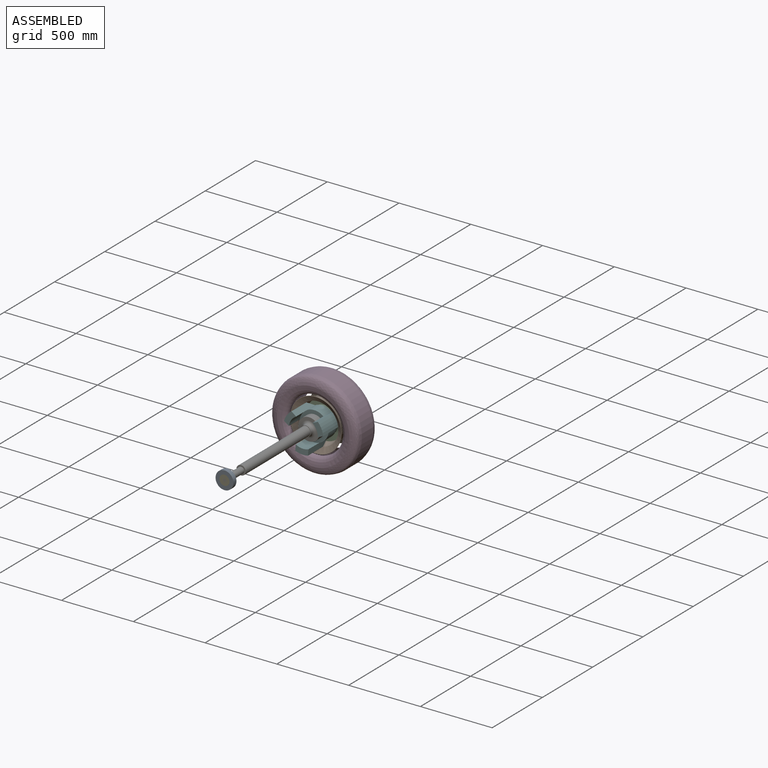
[diagram: assembled view]
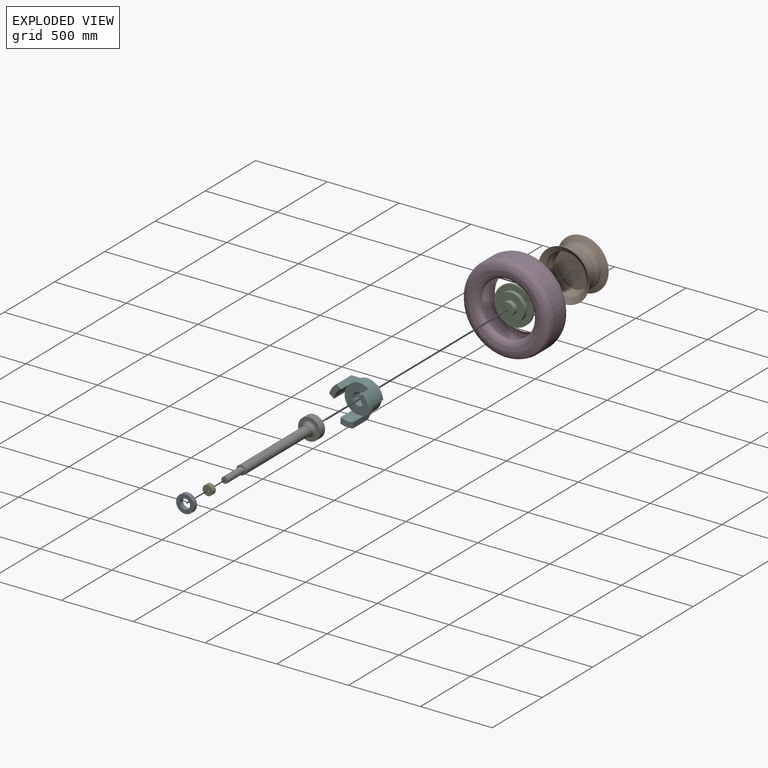
[diagram: exploded view]
GUIDED TOUR — MATED ASSEMBLY (Onshape document 6f42b4545923c4655d142c9b, AutoMate assembly 6f42b4545923c4655d142c9b_3f75b9e3b0eb9c8f5055ca79_a90d861f3bb45c76250df368_default)

This assembly has 7 components, labeled P0..P6 below (a component is one placed occurrence of a part; the same part can appear more than once), held together by 6 mates. A mate is a constraint between two components; its type names the relative motion it leaves free:
  BALL — leaves all rotation about the listed point free (a ball joint),
  CYLINDRICAL — leaves both rotation about and translation along the listed axis free,
  PLANAR — leaves sliding in the plane through the listed point (normal = the listed direction) and rotation about that normal free,
  REVOLUTE — leaves rotation about the listed axis free (a hinge).
Axis/direction vectors are unit vectors and 'through' points are millimeter coordinates, both in the assembly's world frame.

MATES
  1. PLANAR "Planar 1": P1 <-> P2, direction (0.000, -1.000, 0.000) through (-264.76, 300.87, -174.19) mm
  2. CYLINDRICAL "Cylindrical 2": P4 <-> P6, axis (0.000, -1.000, 0.000) through (-264.76, -715.00, -174.19) mm
  3. CYLINDRICAL "Cylindrical 3": P0 <-> P6, axis (0.000, 1.000, 0.000) through (-264.76, -715.00, -174.19) mm
  4. REVOLUTE "Revolute 1": P5 <-> P6, axis (0.000, -1.000, 0.000) through (-264.76, 177.04, -174.19) mm
  5. BALL "Ball 1": P3 <-> P1, direction (0.000, -1.000, 0.000) through (-264.76, 195.67, -174.19) mm
  6. CYLINDRICAL "Cylindrical 1": P2 <-> P5, axis (0.000, -1.000, 0.000) through (-264.76, 256.42, -174.19) mm

ASSEMBLY ORDER
  1. P6 — the base component [order heuristic]
  2. P5 — core [order heuristic]
  3. P3 [order verified]
  4. P2 — core [order heuristic]
  5. P1 — core [order heuristic]
  6. P4 — core [order heuristic]
  7. P0 — core [order heuristic]
Order-tag legend:
  [order verified] — this step's position reverses a verified removal order: the component was checked to insert without passing through the ones already placed.
  [order heuristic] — the first 6 components form the assembly's core: parts whose collision-free extraction could not be verified, listed in mate-graph order.

Of the 7 components, 6 carry the full construction recipe — the FeatureScript program that regenerates the part's solid from scratch; the rest are supplied as boundary geometry only.
Each toured component is shown spotlighted twice — in the assembled view, then in the exploded view, where a leader line traces a displaced component back to its assembled socket (saturated green if recipe-attached, orange if geometry-only; every other component desaturated gray) — followed by its recipe or geometry summary and the mates that hold it.
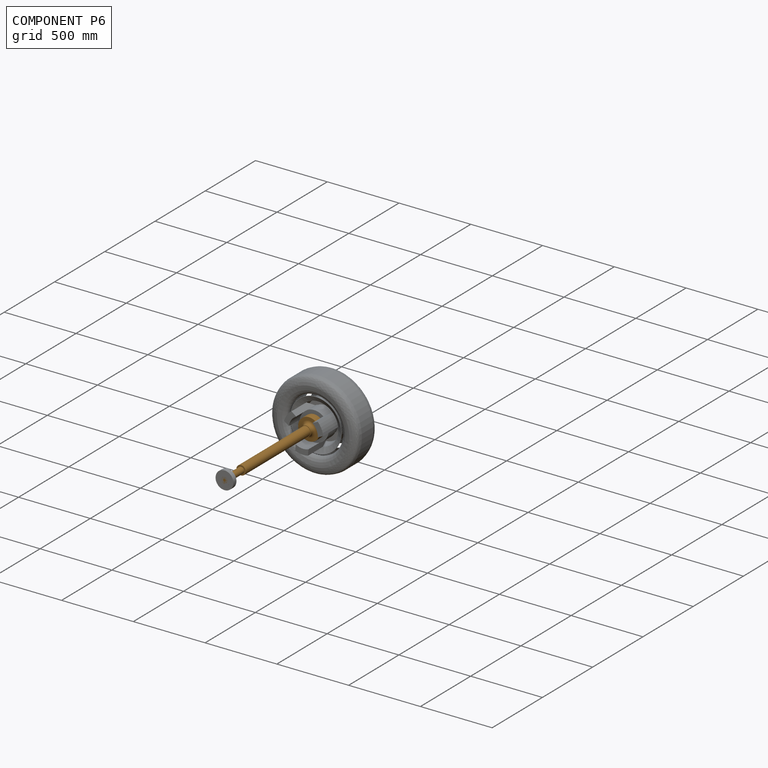
[diagram: component P6 — assembled]
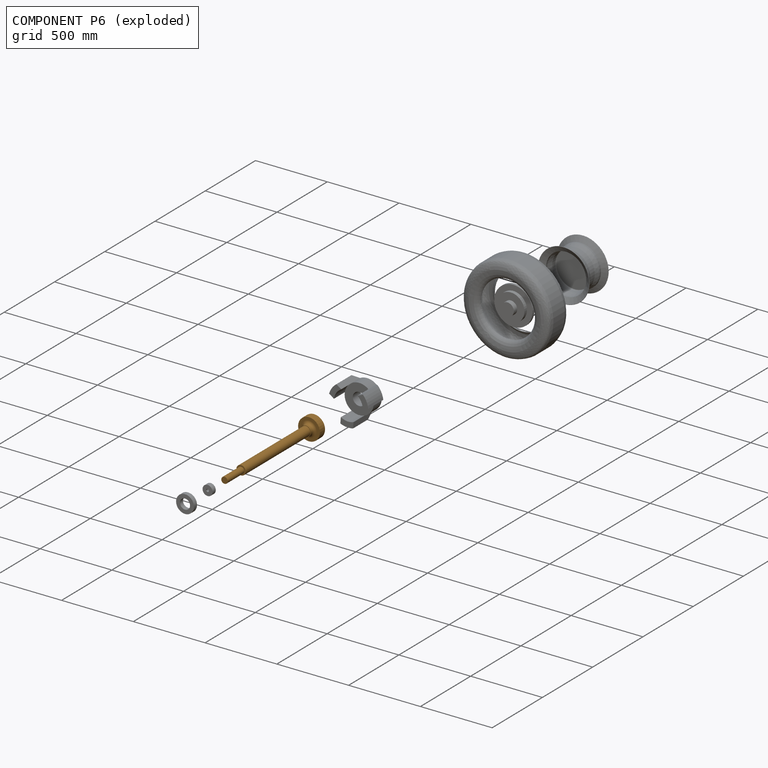
[diagram: component P6 — exploded]
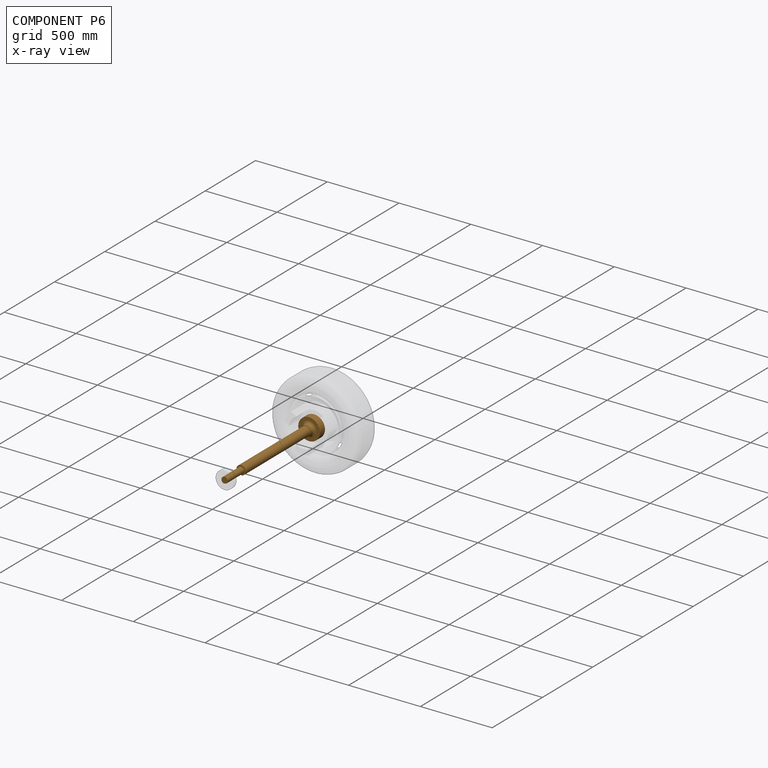
[diagram: component P6 — x-ray view]
COMPONENT P6 — geometry summary (no construction recipe available for this part):
  bounding box: 892.0 x 152.4 x 152.4 mm
  B-rep topology: 1 solid, 10 faces, 32 edges
  volume: 3469334 mm^3 (17% of its bounding box)
  symmetry: revolution-symmetric about the y axis through its bounding-box center; mirror-symmetric across its x mid-plane, z mid-plane
Held by: CYLINDRICAL mate "Cylindrical 2" to P4; CYLINDRICAL mate "Cylindrical 3" to P0; REVOLUTE mate "Revolute 1" to P5.
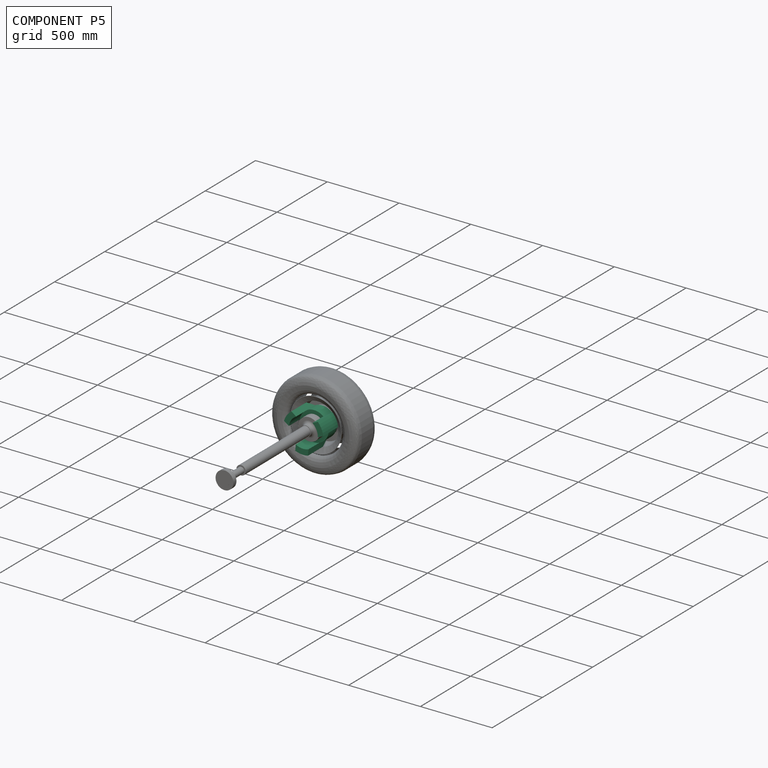
[diagram: component P5 — assembled]
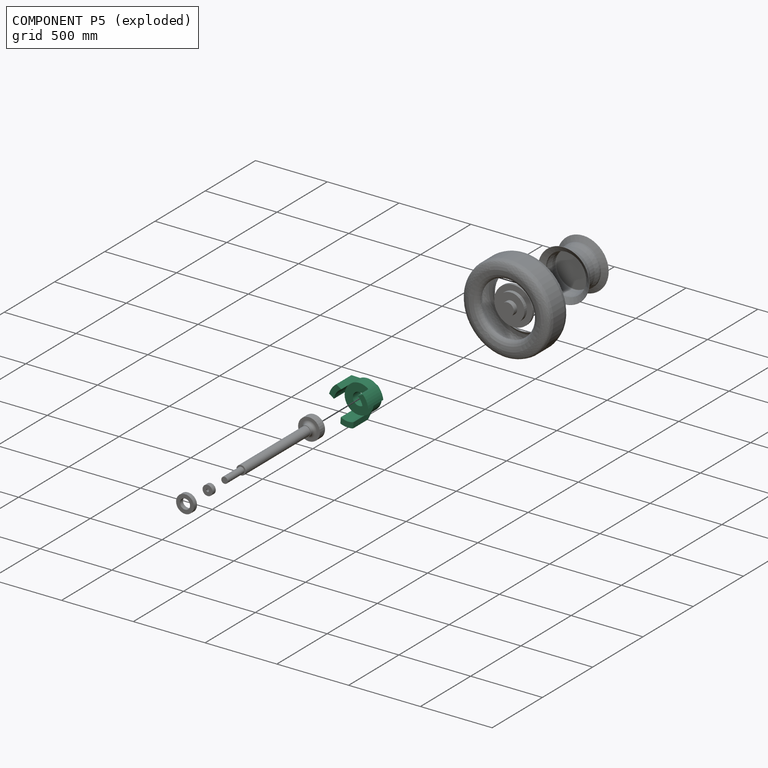
[diagram: component P5 — exploded]
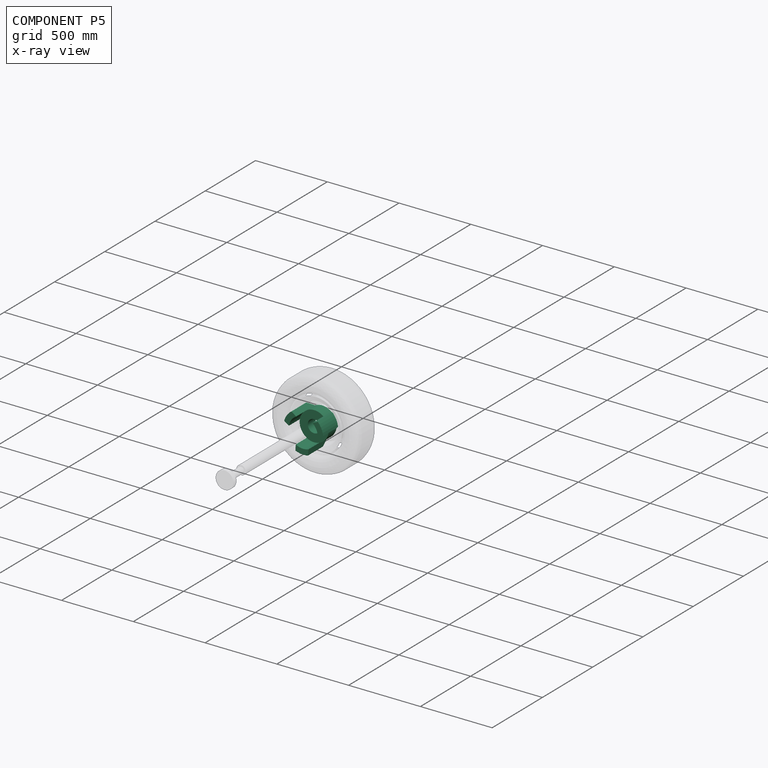
[diagram: component P5 — x-ray view]
COMPONENT P5 — recipe-attached (CADFS 00181305, mesh-verified: the recipe's output STEP matches this component's geometry to below the mesh-comparison resolution (tessellation chordal tolerance ~0.618 mm)).
Held by: REVOLUTE mate "Revolute 1" to P6; CYLINDRICAL mate "Cylindrical 1" to P2.
Construction recipe (FeatureScript — the CAD program that rebuilds this solid; sketch coordinates are in the units given by the * unit suffixes, e.g. mm):

FeatureScript 2581;
import(path : "onshape/std/geometry.fs", version : "2581.0");
import(path : "onshape/std/common.fs", version : "2581.0");
const mm = millimeter;
const VERTEX = EntityType.VERTEX;
const EDGE = EntityType.EDGE;
const FACE = EntityType.FACE;
const BODY = EntityType.BODY;
function v(x, y){return vector(x, y);}
function OD(order){return orderDisambiguation(order);}
function OSD(set){return originalSetDisambiguation(set);}
function TD(topology){return topologyDisambiguation(topology);}
function TDD(query){return trueDependencyDisambiguation(query);}
function sQuery(a, b, c) {return sketchEntityQuery(a, b, c);}

annotation { "Feature Type Name" : "Feature", "Feature Type Description" : "" }
export const myFeature = defineFeature(function(context is Context, id is Id, definition is map)
    precondition{}
    {
        {
            var Q0;
            Q0=qCreatedBy(makeId("Front.planeOp"),FACE);
            var sketch = newSketch(context, id + "F0", { "sketchPlane" : qUnion([Q0])});
            skCircle(sketch, "E0", {"center": v(0, 0) * mm, "radius": 101.6 * mm});
            skCircle(sketch, "E1", {"center": v(0, 0) * mm, "radius": 44.45 * mm});
            skSolve(sketch);
        }
        {
            var Q0;
            Q0 = qSketchRegion(id + "F0", true);
            extrude(context, id + "F1", {"entities" : qUnion([Q0]), "depth" : 79.38 * mm});
        }
        {
            var Q0;
            Q0=makeQuery(id+"F1.opExtrude","CAP_FACE",FACE,{"disambiguationData":[OSD([sQuery(id+"F0.wireOp",EDGE,"E0"),sQuery(id+"F0.wireOp",EDGE,"E1")])],"isStart":false});
            var sketch = newSketch(context, id + "F2", { "sketchPlane" : qUnion([Q0])});
            skLineSegment(sketch, "E2", {"start": v(91.36, 44.45) * mm, "end": v(132.44, 44.45) * mm});
            skLineSegment(sketch, "E3", {"start": v(132.44, -44.45) * mm, "end": v(91.36, -44.45) * mm});
            skPoint(sketch, "E4.end.orphan", {"position": v(101.6, 0) * mm});
            skPoint(sketch, "E4.start.orphan", {"position": v(139.7, 0) * mm});
            skArc(sketch, "E5", {"start": v(91.36, -44.45) * mm, "mid": v(101.6, 0) * mm, "end": v(91.36, 44.45) * mm});
            skArc(sketch, "E6", {"start": v(132.44, -44.45) * mm, "mid": v(139.7, 0) * mm, "end": v(132.44, 44.45) * mm});
            skPoint(sketch, "E7.orphan", {"position": v(139.7, -44.45) * mm});
            skLineSegment(sketch, "E8.1.0", {"start": v(-84.18, 56.9) * mm, "end": v(-104.71, 92.47) * mm});
            skArc(sketch, "E8.1.1", {"start": v(-27.73, 136.92) * mm, "mid": v(-69.85, 120.98) * mm, "end": v(-104.71, 92.47) * mm});
            skLineSegment(sketch, "E8.1.2", {"start": v(-27.73, 136.92) * mm, "end": v(-7.19, 101.35) * mm});
            skArc(sketch, "E8.1.3", {"start": v(-7.19, 101.35) * mm, "mid": v(-50.8, 87.99) * mm, "end": v(-84.18, 56.9) * mm});
            skLineSegment(sketch, "E8.2.0", {"start": v(-7.19, -101.35) * mm, "end": v(-27.73, -136.92) * mm});
            skArc(sketch, "E8.2.1", {"start": v(-104.71, -92.47) * mm, "mid": v(-69.85, -120.98) * mm, "end": v(-27.73, -136.92) * mm});
            skLineSegment(sketch, "E8.2.2", {"start": v(-104.71, -92.47) * mm, "end": v(-84.18, -56.9) * mm});
            skArc(sketch, "E8.2.3", {"start": v(-84.18, -56.9) * mm, "mid": v(-50.8, -87.99) * mm, "end": v(-7.19, -101.35) * mm});
            skSolve(sketch);
        }
        {
            var Q0;
            Q0 = qSketchRegion(id + "F2", true);
            extrude(context, id + "F3", {"entities" : qUnion([Q0]), "operationType" : NewBodyOperationType.ADD, "oppositeDirection" : true, "depth" : 187.45 * mm});
        }
        {
            var Q0;
            Q0=makeQuery(id+"F3.opExtrude","CAP_EDGE",EDGE,{"disambiguationData":[OSD([sQuery(id+"F2.wireOp",EDGE,"E6")])],"isStart":true});
            chamfer(context, id + "F4", {"entities" : qUnion([Q0]), "width" : 38.1 * mm, "tangentPropagation" : true});
        }
        {
            var Q0;
            Q0=makeQuery(id+"F3.opExtrude","CAP_EDGE",EDGE,{"disambiguationData":[OSD([sQuery(id+"F2.wireOp",EDGE,"E8.2.1")])],"isStart":true});
            chamfer(context, id + "F5", {"entities" : qUnion([Q0]), "width" : 38.1 * mm, "tangentPropagation" : true});
        }
        {
            var Q0;
            Q0=makeQuery(id+"F3.opExtrude","CAP_EDGE",EDGE,{"disambiguationData":[OSD([sQuery(id+"F2.wireOp",EDGE,"E8.1.1")])],"isStart":true});
            chamfer(context, id + "F6", {"entities" : qUnion([Q0]), "width" : 38.1 * mm, "tangentPropagation" : true});
        }
    });
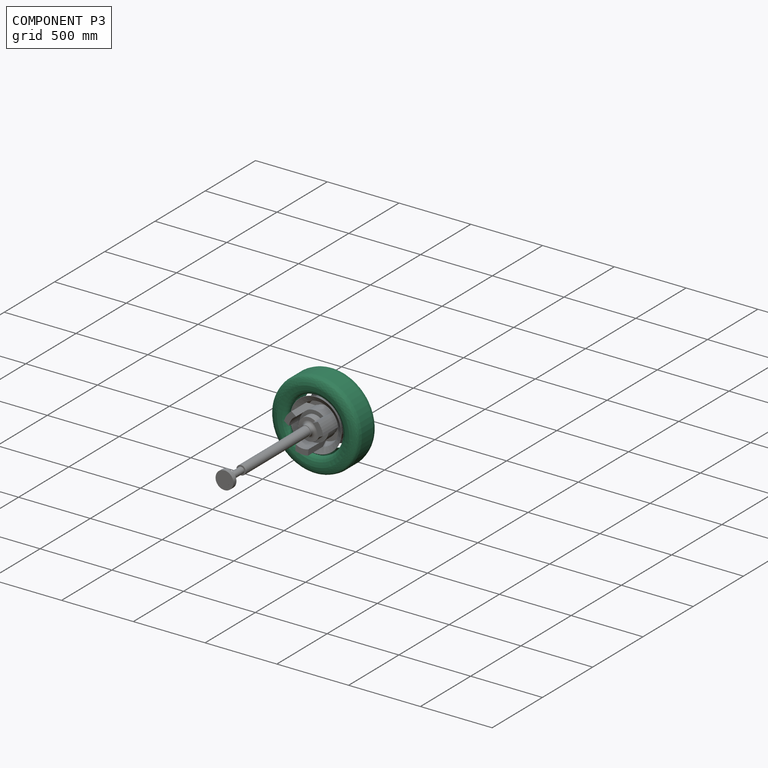
[diagram: component P3 — assembled]
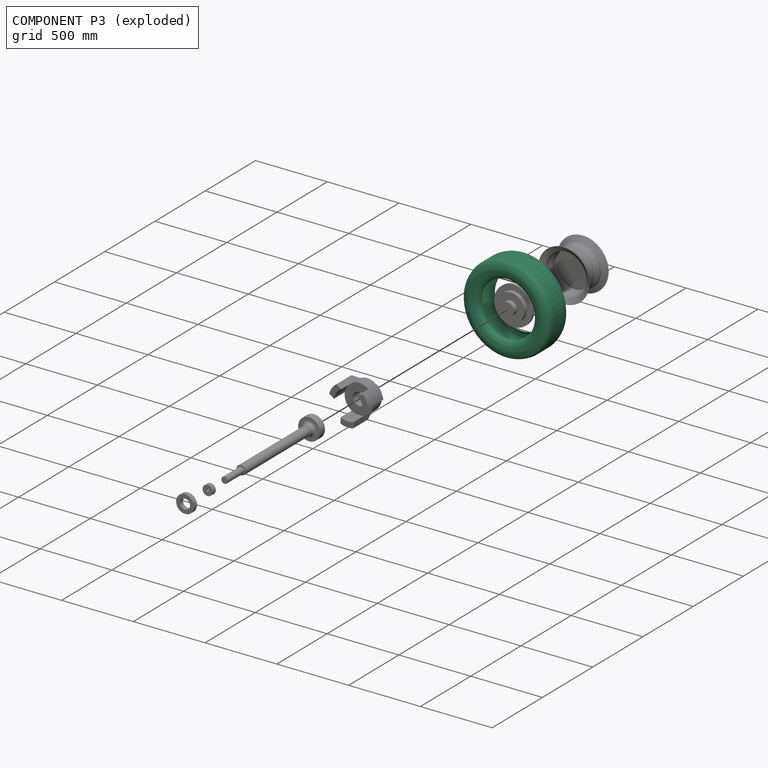
[diagram: component P3 — exploded]
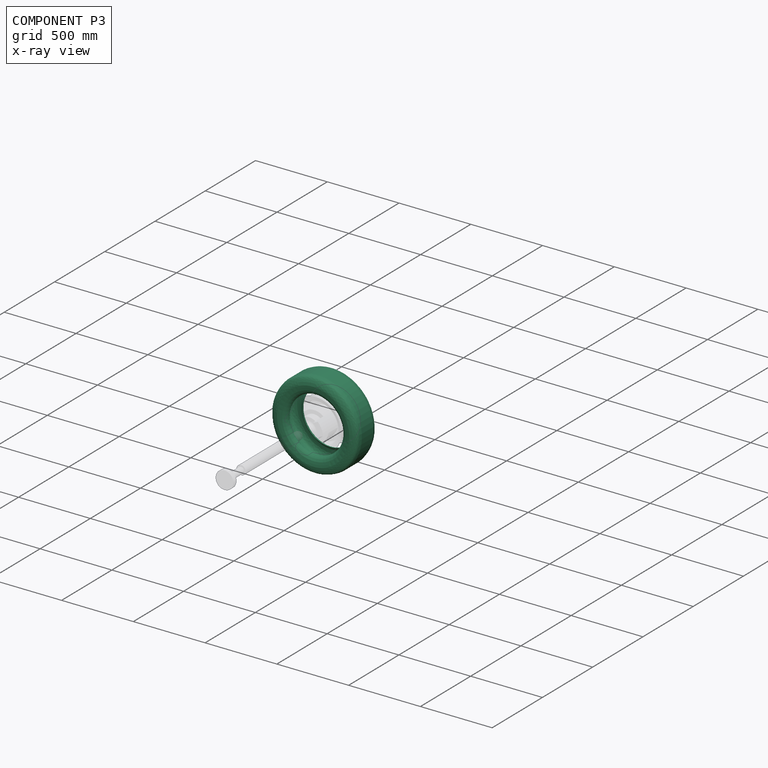
[diagram: component P3 — x-ray view]
COMPONENT P3 — recipe-attached (CADFS 00181301, mesh-verified: the recipe's output STEP matches this component's geometry to below the mesh-comparison resolution (tessellation chordal tolerance ~1.34 mm)).
Held by: BALL mate "Ball 1" to P1.
Construction recipe (FeatureScript — the CAD program that rebuilds this solid; sketch coordinates are in the units given by the * unit suffixes, e.g. mm):

FeatureScript 2581;
import(path : "onshape/std/geometry.fs", version : "2581.0");
import(path : "onshape/std/common.fs", version : "2581.0");
const mm = millimeter;
const VERTEX = EntityType.VERTEX;
const EDGE = EntityType.EDGE;
const FACE = EntityType.FACE;
const BODY = EntityType.BODY;
function v(x, y){return vector(x, y);}
function OD(order){return orderDisambiguation(order);}
function OSD(set){return originalSetDisambiguation(set);}
function TD(topology){return topologyDisambiguation(topology);}
function TDD(query){return trueDependencyDisambiguation(query);}
function sQuery(a, b, c) {return sketchEntityQuery(a, b, c);}

annotation { "Feature Type Name" : "Feature", "Feature Type Description" : "" }
export const myFeature = defineFeature(function(context is Context, id is Id, definition is map)
    precondition{}
    {
        {
            var Q0;
            Q0=qCreatedBy(makeId("Front.planeOp"),FACE);
            var sketch = newSketch(context, id + "F0", { "sketchPlane" : qUnion([Q0])});
            skFitSpline(sketch, "E0", {"points": [v(74.1, 14.01) * mm, v(84.27, 20.82) * mm, v(96.04, 37.57) * mm, v(101.02, 60.21) * mm, v(101.93, 81.5) * mm, v(88.34, 115.46) * mm, v(78.38, 123.6) * mm, v(56.65, 129.5) * mm], "startDerivative": vector(91.95, 51.03) * mm, "endDerivative": vector(-163.24, 36.92) * mm});
            skLineSegment(sketch, "E1", {"start": v(0, 129.5) * mm, "end": v(56.65, 129.5) * mm});
            skLineSegment(sketch, "E2.0", {"start": v(0, -177.8) * mm, "end": v(-118.2, -177.8) * mm});
            skLineSegment(sketch, "E3.0", {"start": v(0, 117.5) * mm, "end": v(56.65, 117.5) * mm});
            skFitSpline(sketch, "E4", {"points": [v(56.65, 117.5) * mm, v(73.73, 114.01) * mm, v(83.87, 107.56) * mm, v(91.71, 90.96) * mm, v(95.4, 72.97) * mm, v(93.55, 57.3) * mm, v(90.33, 40.7) * mm, v(85.72, 31.93) * mm, v(76.95, 24.09) * mm, v(65.89, 16.25) * mm, v(65.89, 12.1) * mm, v(74.1, 14.01) * mm], "startDerivative": vector(172.3, -26.5) * mm, "endDerivative": vector(138.6, 58.5) * mm});
            skPoint(sketch, "E5.end.orphan", {"position": v(64.93, 0) * mm});
            skPoint(sketch, "E6.end.orphan", {"position": v(52.45, 0) * mm});
            skPoint(sketch, "E7.end.orphan", {"position": v(17.76, -10.13) * mm});
            skPoint(sketch, "E7.start.orphan", {"position": v(0, -10.13) * mm});
            skPoint(sketch, "E8.MirrorCS.start.orphan", {"position": v(-17.76, -10.13) * mm});
            skPoint(sketch, "E9.MirrorCS.start.orphan", {"position": v(-52.45, 0) * mm});
            skPoint(sketch, "E10.MirrorCS.start.orphan", {"position": v(-64.93, 0) * mm});
            skPoint(sketch, "E11.MirrorCS.0.internal.orphan", {"position": v(-74.1, 14.01) * mm});
            skPoint(sketch, "E12.MirrorCS.end.orphan", {"position": v(-56.65, 129.5) * mm});
            skPoint(sketch, "E12.MirrorCS.start.orphan", {"position": v(0, 129.5) * mm});
            skLineSegment(sketch, "E13.MirrorCS", {"start": v(0, 129.5) * mm, "end": v(-56.65, 129.5) * mm});
            skLineSegment(sketch, "E14.MirrorCS", {"start": v(0, 117.5) * mm, "end": v(-56.65, 117.5) * mm});
            skFitSpline(sketch, "E15.MirrorCS", {"points": [v(-56.65, 117.5) * mm, v(-73.73, 114.01) * mm, v(-83.87, 107.56) * mm, v(-91.71, 90.96) * mm, v(-95.4, 72.97) * mm, v(-93.55, 57.3) * mm, v(-90.33, 40.7) * mm, v(-85.72, 31.93) * mm, v(-76.95, 24.09) * mm, v(-65.89, 16.25) * mm, v(-65.89, 12.1) * mm, v(-74.1, 14.01) * mm], "startDerivative": vector(-172.3, -26.5) * mm, "endDerivative": vector(-138.6, 58.5) * mm});
            skFitSpline(sketch, "E16.MirrorCS", {"points": [v(-74.1, 14.01) * mm, v(-84.27, 20.82) * mm, v(-96.04, 37.57) * mm, v(-101.02, 60.21) * mm, v(-101.93, 81.5) * mm, v(-88.34, 115.46) * mm, v(-78.38, 123.6) * mm, v(-56.65, 129.5) * mm], "startDerivative": vector(-91.95, 51.03) * mm, "endDerivative": vector(163.24, 36.92) * mm});
            skSolve(sketch);
        }
        {
            var Q0;
            Q0=qSketchRegion(id+"F0",true);
            var Q1;
            Q1=sQuery(id+"F0.wireOp",EDGE,"E2.0");
            revolve(context, id + "F1", {"entities" : qUnion([Q0]), "axis" : qUnion([Q1]), "revolveType" : RevolveType.FULL});
        }
    });
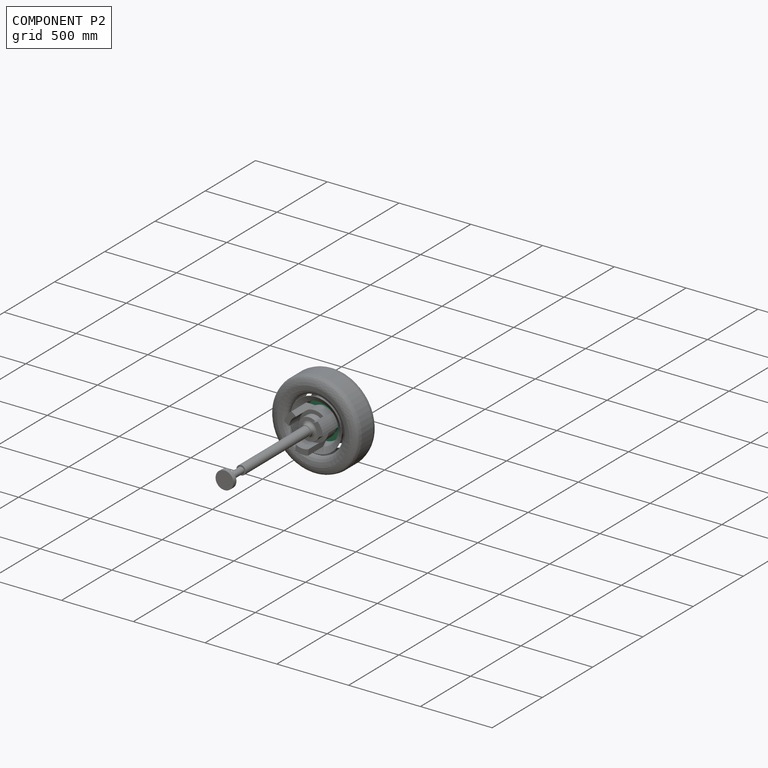
[diagram: component P2 — assembled]
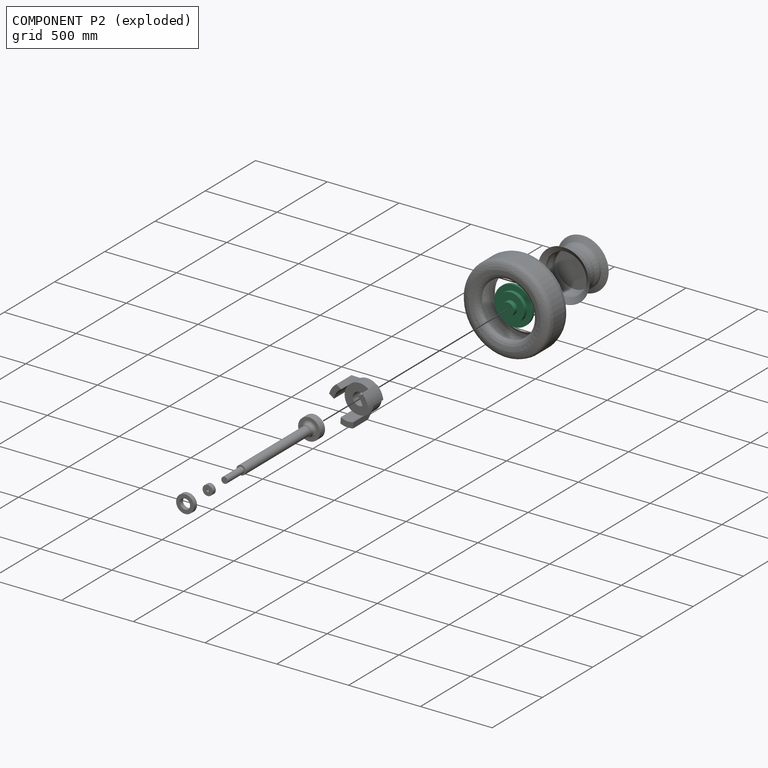
[diagram: component P2 — exploded]
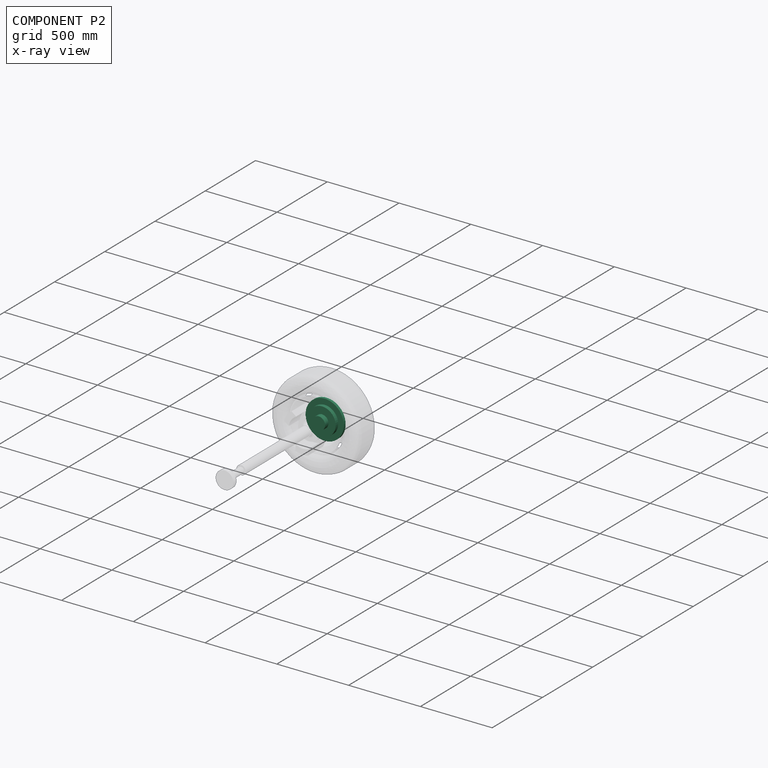
[diagram: component P2 — x-ray view]
COMPONENT P2 — recipe-attached (CADFS 00181302, mesh-verified: the recipe's output STEP matches this component's geometry to below the mesh-comparison resolution (tessellation chordal tolerance ~0.578 mm)).
Held by: PLANAR mate "Planar 1" to P1; CYLINDRICAL mate "Cylindrical 1" to P5.
Construction recipe (FeatureScript — the CAD program that rebuilds this solid; sketch coordinates are in the units given by the * unit suffixes, e.g. mm):

FeatureScript 2581;
import(path : "onshape/std/geometry.fs", version : "2581.0");
import(path : "onshape/std/common.fs", version : "2581.0");
const mm = millimeter;
const VERTEX = EntityType.VERTEX;
const EDGE = EntityType.EDGE;
const FACE = EntityType.FACE;
const BODY = EntityType.BODY;
function v(x, y){return vector(x, y);}
function OD(order){return orderDisambiguation(order);}
function OSD(set){return originalSetDisambiguation(set);}
function TD(topology){return topologyDisambiguation(topology);}
function TDD(query){return trueDependencyDisambiguation(query);}
function sQuery(a, b, c) {return sketchEntityQuery(a, b, c);}

annotation { "Feature Type Name" : "Feature", "Feature Type Description" : "" }
export const myFeature = defineFeature(function(context is Context, id is Id, definition is map)
    precondition{}
    {
        {
            var Q0;
            Q0=qCreatedBy(makeId("Front.planeOp"),FACE);
            var sketch = newSketch(context, id + "F0", { "sketchPlane" : qUnion([Q0])});
            skCircle(sketch, "E0", {"center": v(0, 0) * mm, "radius": 133.35 * mm});
            skSolve(sketch);
        }
        {
            var Q0;
            Q0 = qSketchRegion(id + "F0", true);
            extrude(context, id + "F1", {"entities" : qUnion([Q0]), "depth" : 19.05 * mm});
        }
        {
            var Q0;
            Q0=makeQuery(id+"F1.opExtrude","CAP_FACE",FACE,{"disambiguationData":[OSD([sQuery(id+"F0.wireOp",EDGE,"E0")])],"isStart":false});
            var sketch = newSketch(context, id + "F2", { "sketchPlane" : qUnion([Q0])});
            skCircle(sketch, "E1", {"center": v(0, 0) * mm, "radius": 94.49 * mm});
            skSolve(sketch);
        }
        {
            var Q0;
            Q0 = qSketchRegion(id + "F2", true);
            extrude(context, id + "F3", {"entities" : qUnion([Q0]), "operationType" : NewBodyOperationType.ADD, "depth" : 25.4 * mm});
        }
        {
            var Q0;
            Q0=makeQuery(id+"F3.opExtrude","CAP_FACE",FACE,{"disambiguationData":[OSD([sQuery(id+"F2.wireOp",EDGE,"E1")])],"isStart":false});
            var sketch = newSketch(context, id + "F4", { "sketchPlane" : qUnion([Q0])});
            skCircle(sketch, "E2", {"center": v(0, 0) * mm, "radius": 44.45 * mm});
            skSolve(sketch);
        }
        {
            var Q0;
            Q0 = qSketchRegion(id + "F4", true);
            extrude(context, id + "F5", {"entities" : qUnion([Q0]), "operationType" : NewBodyOperationType.ADD, "depth" : 33.27 * mm});
        }
    });
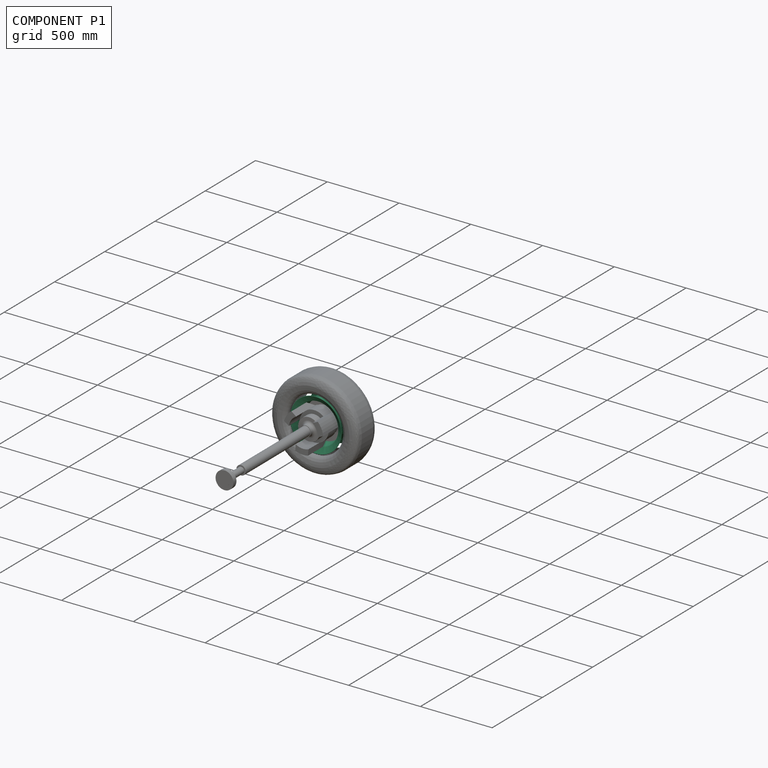
[diagram: component P1 — assembled]
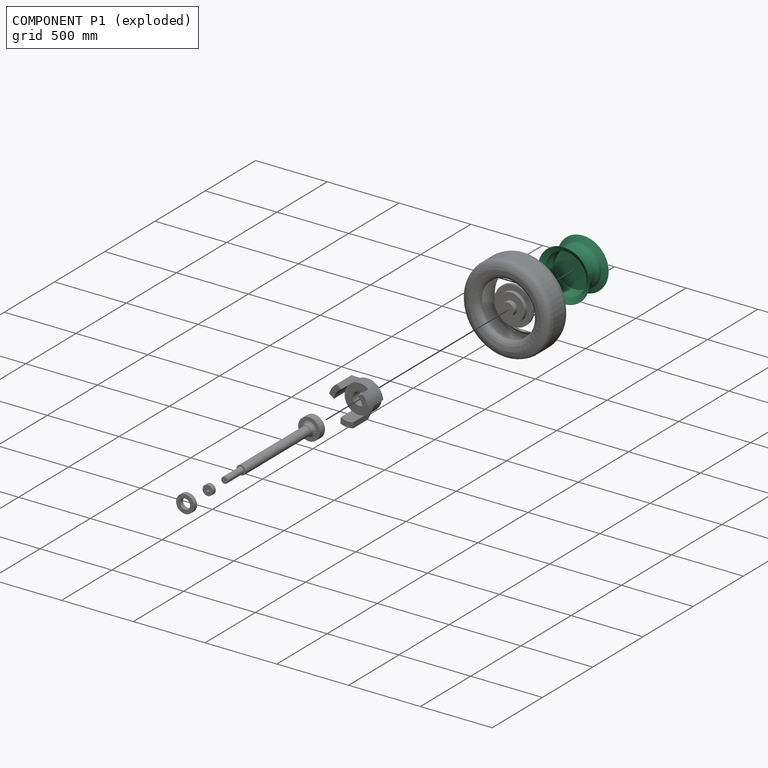
[diagram: component P1 — exploded]
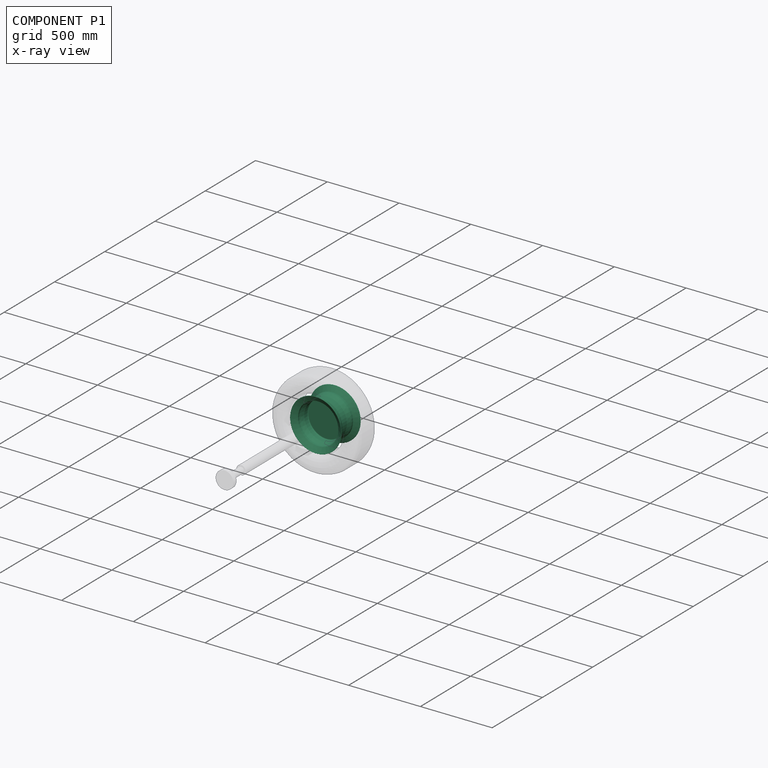
[diagram: component P1 — x-ray view]
COMPONENT P1 — recipe-attached (CADFS 00181306, mesh-verified: the recipe's output STEP matches this component's geometry to below the mesh-comparison resolution (tessellation chordal tolerance ~0.815 mm)).
Held by: PLANAR mate "Planar 1" to P2; BALL mate "Ball 1" to P3.
Construction recipe (FeatureScript — the CAD program that rebuilds this solid; sketch coordinates are in the units given by the * unit suffixes, e.g. mm):

FeatureScript 2581;
import(path : "onshape/std/geometry.fs", version : "2581.0");
import(path : "onshape/std/common.fs", version : "2581.0");
const mm = millimeter;
const VERTEX = EntityType.VERTEX;
const EDGE = EntityType.EDGE;
const FACE = EntityType.FACE;
const BODY = EntityType.BODY;
function v(x, y){return vector(x, y);}
function OD(order){return orderDisambiguation(order);}
function OSD(set){return originalSetDisambiguation(set);}
function TD(topology){return topologyDisambiguation(topology);}
function TDD(query){return trueDependencyDisambiguation(query);}
function sQuery(a, b, c) {return sketchEntityQuery(a, b, c);}

annotation { "Feature Type Name" : "Feature", "Feature Type Description" : "" }
export const myFeature = defineFeature(function(context is Context, id is Id, definition is map)
    precondition{}
    {
        {
            var Q0;
            Q0=qCreatedBy(makeId("Front.planeOp"),FACE);
            var sketch = newSketch(context, id + "F0", { "sketchPlane" : qUnion([Q0])});
            skLineSegment(sketch, "E0", {"start": v(57.3, -34) * mm, "end": v(70.47, -34) * mm});
            skLineSegment(sketch, "E1", {"start": v(0, -44.13) * mm, "end": v(22.62, -44.13) * mm});
            skLineSegment(sketch, "E2", {"start": v(22.62, -44.13) * mm, "end": v(57.3, -34) * mm});
            skLineSegment(sketch, "E3", {"start": v(70.47, -34) * mm, "end": v(93.54, 1.3) * mm});
            skLineSegment(sketch, "E4.MirrorCS", {"start": v(0, -44.13) * mm, "end": v(-22.62, -44.13) * mm});
            skLineSegment(sketch, "E5.MirrorCS", {"start": v(-22.62, -44.13) * mm, "end": v(-57.3, -34) * mm});
            skLineSegment(sketch, "E6.MirrorCS", {"start": v(-57.3, -34) * mm, "end": v(-70.47, -34) * mm});
            skLineSegment(sketch, "E7.MirrorCS", {"start": v(-70.47, -34) * mm, "end": v(-93.54, 1.3) * mm});
            skLineSegment(sketch, "E8.0", {"start": v(0, -177.8) * mm, "end": v(-118.2, -177.8) * mm});
            skPoint(sketch, "E9.7.internal.orphan", {"position": v(56.65, 129.5) * mm});
            skPoint(sketch, "E10.start.orphan", {"position": v(0, 129.5) * mm});
            skPoint(sketch, "E11.MirrorCS.end.orphan", {"position": v(-56.65, 129.5) * mm});
            skLineSegment(sketch, "E12.0", {"start": v(-72.1, -37) * mm, "end": v(-96.05, -0.33) * mm});
            skLineSegment(sketch, "E12.1", {"start": v(-57.74, -37) * mm, "end": v(-72.1, -37) * mm});
            skLineSegment(sketch, "E12.2", {"start": v(-23.05, -47.13) * mm, "end": v(-57.74, -37) * mm});
            skLineSegment(sketch, "E12.3", {"start": v(0, -47.13) * mm, "end": v(-6.66, -47.13) * mm});
            skArc(sketch, "E13", {"start": v(-93.54, 1.3) * mm, "mid": v(-95.61, 1.74) * mm, "end": v(-96.05, -0.33) * mm});
            skArc(sketch, "E14.MirrorCS", {"start": v(93.54, 1.3) * mm, "mid": v(95.61, 1.74) * mm, "end": v(96.05, -0.33) * mm});
            skLineSegment(sketch, "E15.MirrorCS", {"start": v(72.1, -37) * mm, "end": v(96.05, -0.33) * mm});
            skLineSegment(sketch, "E16.MirrorCS", {"start": v(57.74, -37) * mm, "end": v(72.1, -37) * mm});
            skLineSegment(sketch, "E17.MirrorCS", {"start": v(23.05, -47.13) * mm, "end": v(57.74, -37) * mm});
            skLineSegment(sketch, "E18.MirrorCS", {"start": v(0, -47.13) * mm, "end": v(23.05, -47.13) * mm});
            skLineSegment(sketch, "E19", {"start": v(-14.66, -52.13) * mm, "end": v(-14.66, -177.8) * mm});
            skLineSegment(sketch, "E20.0", {"start": v(-11.66, -52.13) * mm, "end": v(-11.66, -177.8) * mm});
            skLineSegment(sketch, "E21.trimOffspring", {"start": v(-19.66, -47.13) * mm, "end": v(-23.05, -47.13) * mm});
            skPoint(sketch, "E22.visualSharp", {"position": v(-14.66, -47.13) * mm});
            skArc(sketch, "E22.filletArc", {"start": v(-14.66, -52.13) * mm, "mid": v(-16.13, -48.6) * mm, "end": v(-19.66, -47.13) * mm});
            skPoint(sketch, "E23.visualSharp", {"position": v(-11.66, -47.13) * mm});
            skArc(sketch, "E23.filletArc", {"start": v(-6.66, -47.13) * mm, "mid": v(-10.2, -48.6) * mm, "end": v(-11.66, -52.13) * mm});
            skSolve(sketch);
        }
        {
            var Q0;
            Q0=qSketchRegion(id+"F0",true);
            var Q1;
            Q1=sQuery(id+"F0.wireOp",EDGE,"E8.0");
            revolve(context, id + "F1", {"entities" : qUnion([Q0]), "axis" : qUnion([Q1]), "revolveType" : RevolveType.FULL});
        }
    });
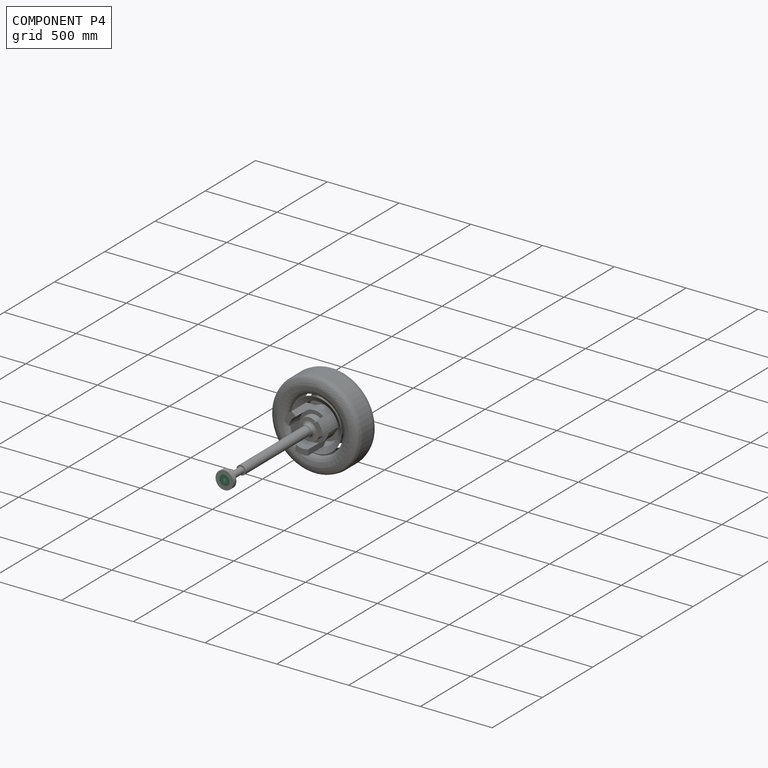
[diagram: component P4 — assembled]
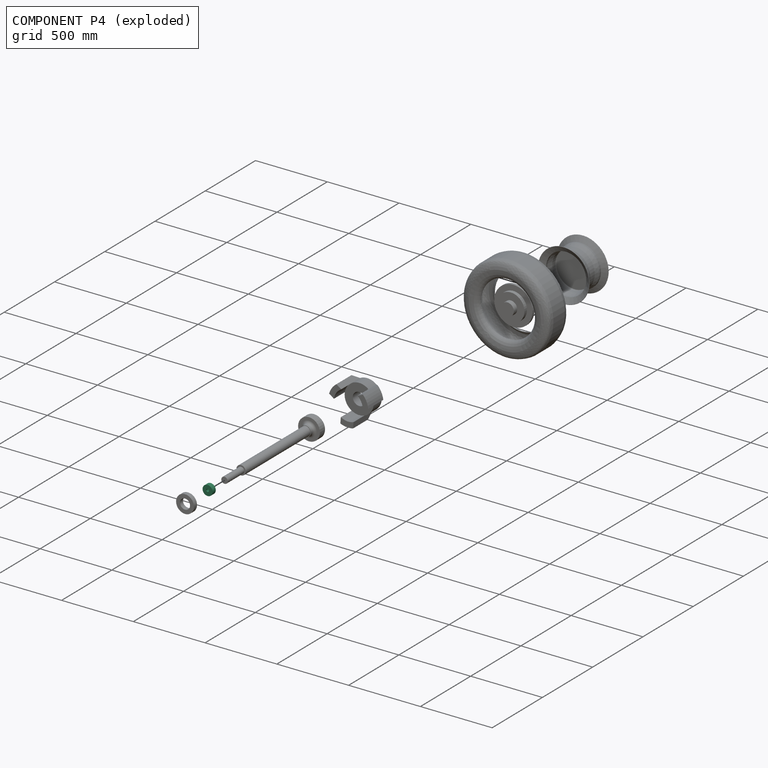
[diagram: component P4 — exploded]
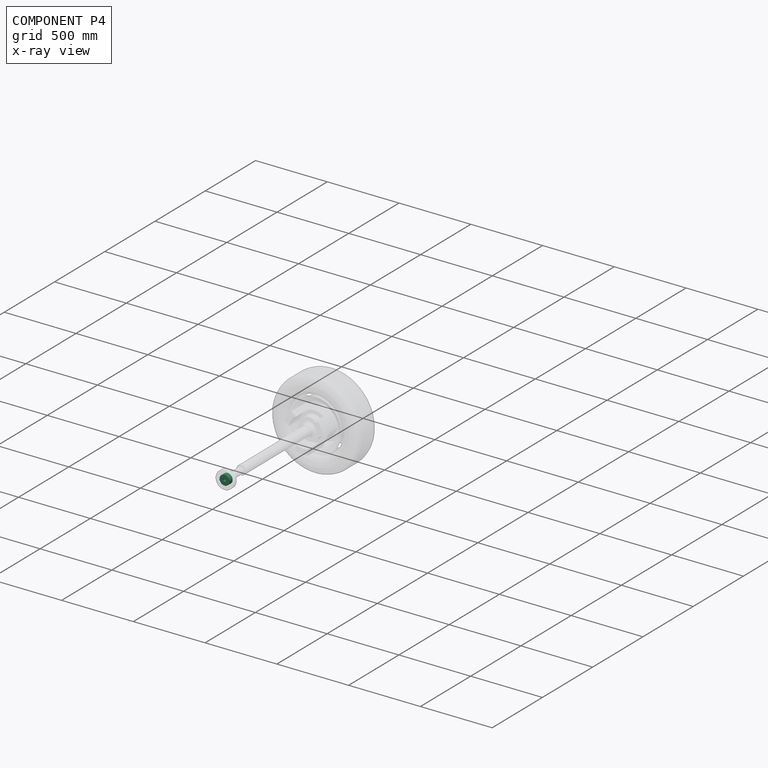
[diagram: component P4 — x-ray view]
COMPONENT P4 — recipe-attached (CADFS 00181308, mesh-verified: the recipe's output STEP matches this component's geometry to below the mesh-comparison resolution (tessellation chordal tolerance ~0.156 mm)).
Held by: CYLINDRICAL mate "Cylindrical 2" to P6.
Construction recipe (FeatureScript — the CAD program that rebuilds this solid; sketch coordinates are in the units given by the * unit suffixes, e.g. mm):

FeatureScript 2581;
import(path : "onshape/std/geometry.fs", version : "2581.0");
import(path : "onshape/std/common.fs", version : "2581.0");
const mm = millimeter;
const VERTEX = EntityType.VERTEX;
const EDGE = EntityType.EDGE;
const FACE = EntityType.FACE;
const BODY = EntityType.BODY;
function v(x, y){return vector(x, y);}
function OD(order){return orderDisambiguation(order);}
function OSD(set){return originalSetDisambiguation(set);}
function TD(topology){return topologyDisambiguation(topology);}
function TDD(query){return trueDependencyDisambiguation(query);}
function sQuery(a, b, c) {return sketchEntityQuery(a, b, c);}

annotation { "Feature Type Name" : "Feature", "Feature Type Description" : "" }
export const myFeature = defineFeature(function(context is Context, id is Id, definition is map)
    precondition{}
    {
        {
            var Q0;
            Q0=qCreatedBy(makeId("Top.planeOp"),FACE);
            var sketch = newSketch(context, id + "F0", { "sketchPlane" : qUnion([Q0])});
            skCircle(sketch, "E0", {"center": v(0.33, 0.5) * mm, "radius": 34.93 * mm});
            skCircle(sketch, "E1", {"center": v(0.33, 0.5) * mm, "radius": 9.53 * mm});
            skSolve(sketch);
        }
        {
            var Q0;
            Q0 = qSketchRegion(id + "F0", true);
            var Q1;
            Q1=makeQuery(id+"F0.imprint","IMPRINT",FACE,{"disambiguationData":[TD([[makeQuery(id+"F0.imprint","IMPRINT",EDGE,{"derivedFrom":sQuery(id+"F0.wireOp",EDGE,"E0")}),1.0]])]});
            extrude(context, id + "F1", {"entities" : qUnion([Q0, Q1]), "depth" : 31.75 * mm});
        }
    });
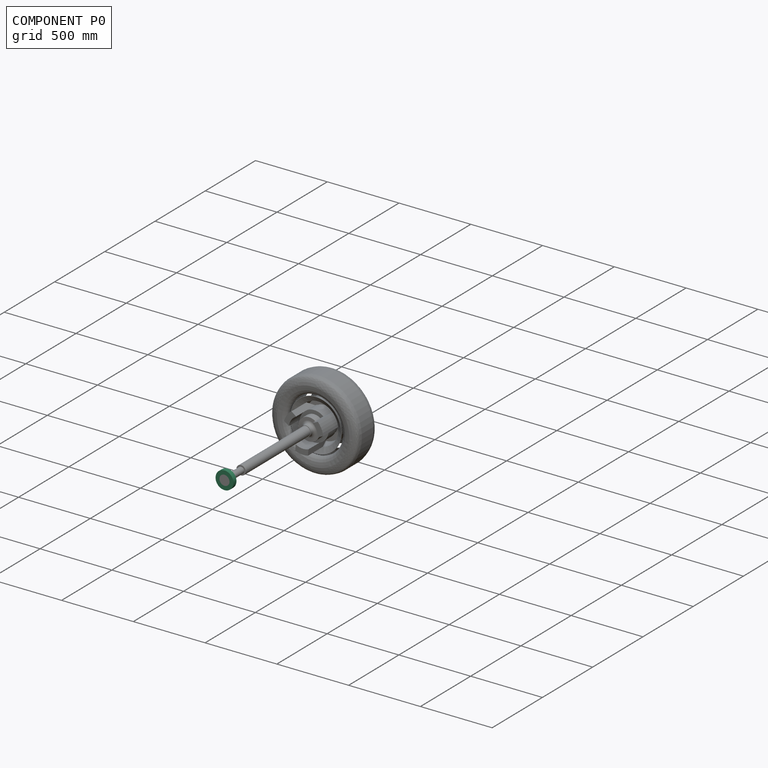
[diagram: component P0 — assembled]
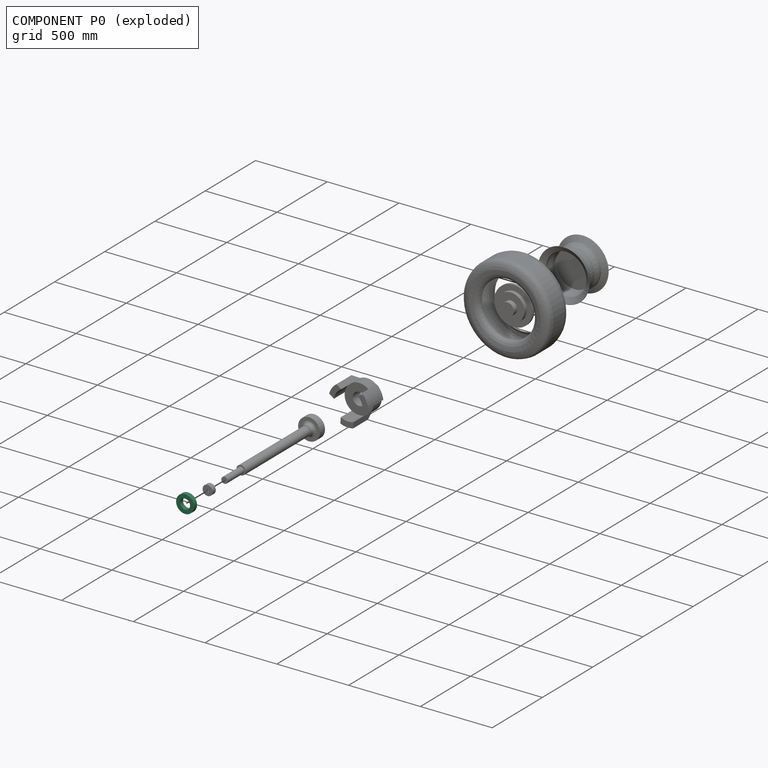
[diagram: component P0 — exploded]
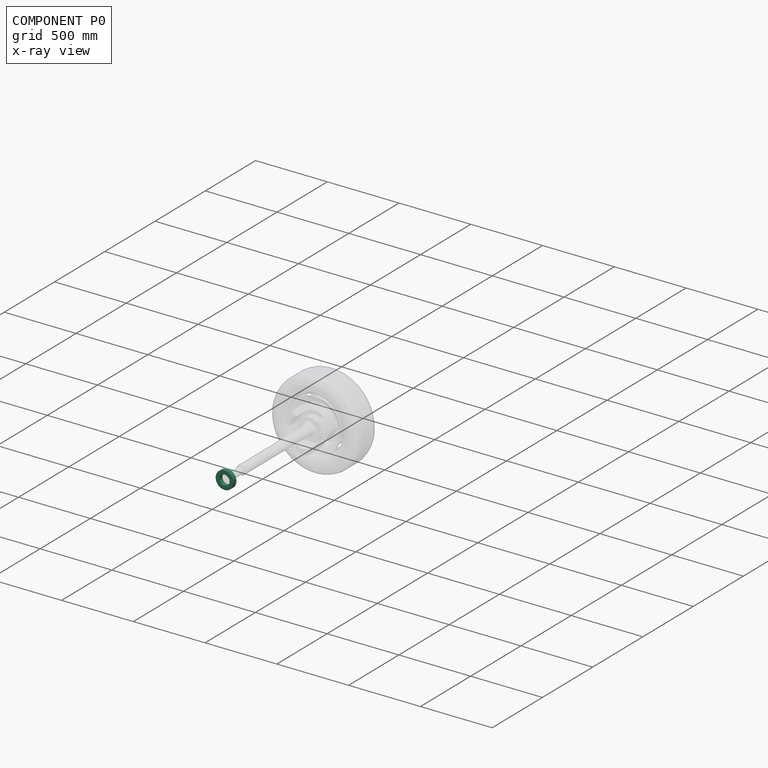
[diagram: component P0 — x-ray view]
COMPONENT P0 — recipe-attached (CADFS 00181307, mesh-verified: the recipe's output STEP matches this component's geometry to below the mesh-comparison resolution (tessellation chordal tolerance ~0.268 mm)).
Held by: CYLINDRICAL mate "Cylindrical 3" to P6.
Construction recipe (FeatureScript — the CAD program that rebuilds this solid; sketch coordinates are in the units given by the * unit suffixes, e.g. mm):

FeatureScript 2581;
import(path : "onshape/std/geometry.fs", version : "2581.0");
import(path : "onshape/std/common.fs", version : "2581.0");
const mm = millimeter;
const VERTEX = EntityType.VERTEX;
const EDGE = EntityType.EDGE;
const FACE = EntityType.FACE;
const BODY = EntityType.BODY;
function v(x, y){return vector(x, y);}
function OD(order){return orderDisambiguation(order);}
function OSD(set){return originalSetDisambiguation(set);}
function TD(topology){return topologyDisambiguation(topology);}
function TDD(query){return trueDependencyDisambiguation(query);}
function sQuery(a, b, c) {return sketchEntityQuery(a, b, c);}

annotation { "Feature Type Name" : "Feature", "Feature Type Description" : "" }
export const myFeature = defineFeature(function(context is Context, id is Id, definition is map)
    precondition{}
    {
        {
            var Q0;
            Q0=qCreatedBy(makeId("Top.planeOp"),FACE);
            var sketch = newSketch(context, id + "F0", { "sketchPlane" : qUnion([Q0])});
            skCircle(sketch, "E0", {"center": v(0, 0) * mm, "radius": 62.23 * mm});
            skCircle(sketch, "E1", {"center": v(0, 0) * mm, "radius": 34.93 * mm});
            skSolve(sketch);
        }
        {
            var Q0;
            Q0 = qSketchRegion(id + "F0", true);
            extrude(context, id + "F1", {"entities" : qUnion([Q0]), "depth" : 30.5 * mm});
        }
    });
PROVENANCE & LICENSES
Assembly (occurrences, transforms, mates, per-part STEP geometry): AutoMate dataset, Zenodo record 7776208, CC0.
Construction recipes: CADFS (HuggingFace VladPyatov/CADFS, CC-BY-4.0, layered over the ABC dataset), FeatureScript reconstruction programs keyed by ABC model id.
Join: ABC meta listings map ABC model id -> Onshape documentId; within a shared document, parts are matched by geometric signature (bounding-box dims + volume at 0.1% relative tolerance, exact B-rep face/solid counts).
Verification: 6 of this assembly's 7 components carry a recipe attachment, and every attachment is mesh-verified: the CADFS STEP and the AutoMate member STEP were compared as meshes in their shared local frame (symmetric sampled-point-to-mesh distance); worst across the 6 attachments: below the mesh-comparison resolution (tessellation chordal tolerance ~1.34 mm) on a 893 mm part.
Renders: orthographic iso camera (az 35 / el 25); the floor grid conveys scale (grid pitch printed in each image; no ruler). In the exploded view each component is displaced by its stored offset vector: the offsets alone carry the explosion direction (mate normal/axis signs are not orientation cues and do not encode it), and separation distances are assigned per mate-chain, not proportionally to assembly-order depth.
